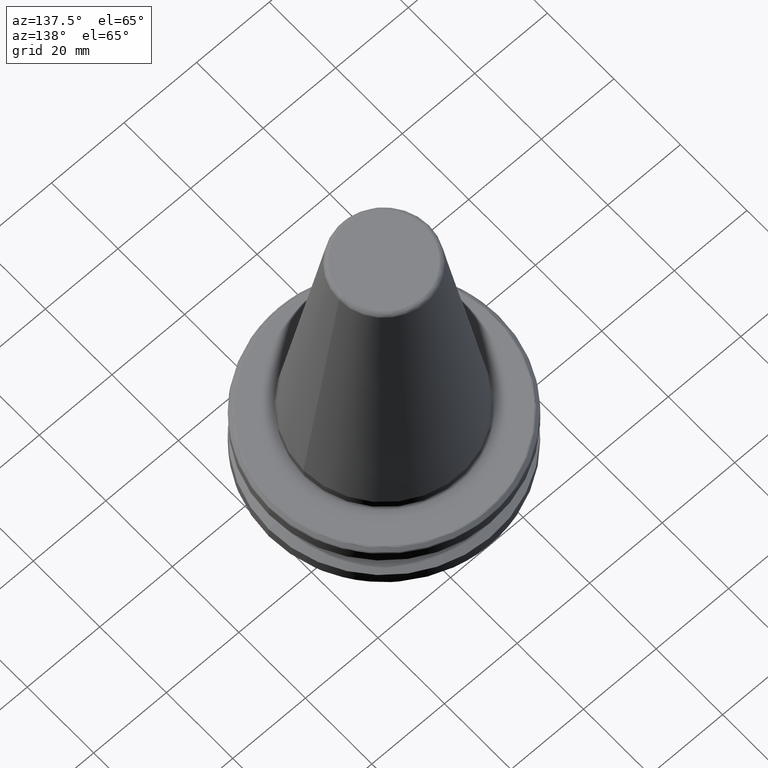
[diagram: clean part render]
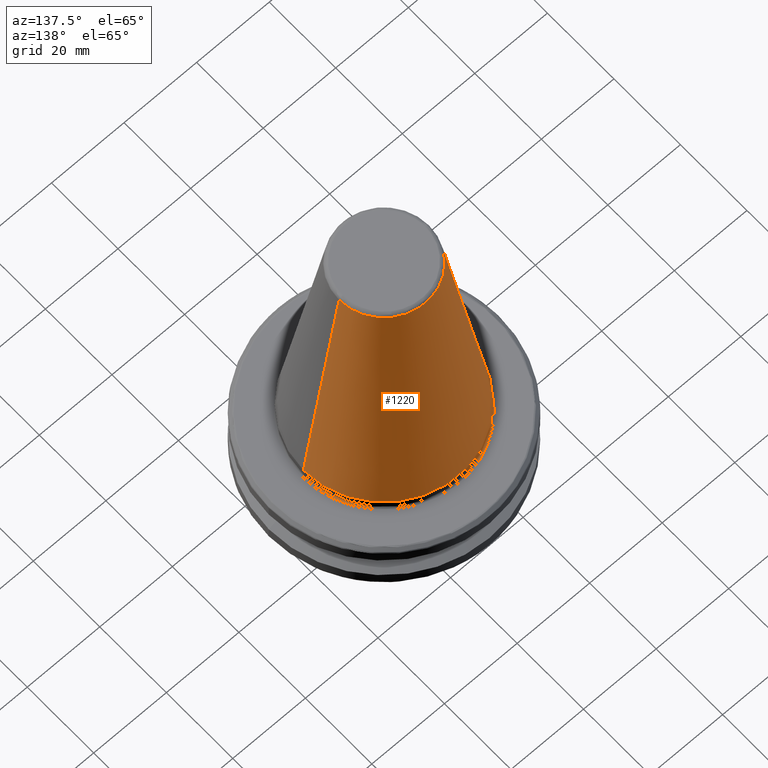
[diagram: same view with one face highlighted and labeled with its STEP entity id]
A machine part, auxiliary view. The second image highlights one B-rep face of the part: STEP entity #1220.
In plain terms, the highlighted conical surface has half-angle 8.297 deg.
Its self-contained STEP definition (entity closure, byte-faithful):
#68 = VECTOR ( 'NONE', #2976, 1000.000000000000000 ) ;
#319 = CIRCLE ( 'NONE', #928, 22.22500000000000100 ) ;
#382 = DIRECTION ( 'NONE',  ( -1.000000000000000000, 0.0000000000000000000, 0.0000000000000000000 ) ) ;
#462 = VERTEX_POINT ( 'NONE', #2239 ) ;
#554 = VECTOR ( 'NONE', #1482, 1000.000000000000000 ) ;
#680 = DIRECTION ( 'NONE',  ( 0.0000000000000000000, 0.0000000000000000000, -1.000000000000000000 ) ) ;
#714 = AXIS2_PLACEMENT_3D ( 'NONE', #2527, #680, #382 ) ;
#840 = FACE_OUTER_BOUND ( 'NONE', #2707, .T. ) ;
#928 = AXIS2_PLACEMENT_3D ( 'NONE', #2752, #1627, #1395 ) ;
#994 = LINE ( 'NONE', #1459, #554 ) ;
#1091 = EDGE_CURVE ( 'NONE', #2701, #2743, #319, .T. ) ;
#1220 = ADVANCED_FACE ( 'NONE', ( #840 ), #1688, .T. ) ;
#1233 = DIRECTION ( 'NONE',  ( -1.000000000000000000, 0.0000000000000000000, 0.0000000000000000000 ) ) ;
#1262 = DIRECTION ( 'NONE',  ( 0.0000000000000000000, 0.0000000000000000000, -1.000000000000000000 ) ) ;
#1285 = AXIS2_PLACEMENT_3D ( 'NONE', #2602, #1262, #1233 ) ;
#1329 = EDGE_CURVE ( 'NONE', #462, #2189, #2340, .T. ) ;
#1395 = DIRECTION ( 'NONE',  ( -1.000000000000000000, 0.0000000000000000000, 6.244223985518314900E-016 ) ) ;
#1459 = CARTESIAN_POINT ( 'NONE',  ( -22.22500000000000500, 0.0000000000000000000, -2.775557561562891400E-014 ) ) ;
#1482 = DIRECTION ( 'NONE',  ( -0.1443082272673070200, 0.0000000000000000000, -0.9895327864921743500 ) ) ;
#1627 = DIRECTION ( 'NONE',  ( -0.0000000000000000000, -0.0000000000000000000, 1.000000000000000000 ) ) ;
#1634 = EDGE_CURVE ( 'NONE', #462, #2743, #994, .T. ) ;
#1688 = CONICAL_SURFACE ( 'NONE', #714, 22.22500000000000500, 0.1448138465474190200 ) ;
#1804 = CARTESIAN_POINT ( 'NONE',  ( 22.22500000000000500, 2.721777511104993200E-015, -2.775557561562891400E-014 ) ) ;
#1888 = ORIENTED_EDGE ( 'NONE', *, *, #1091, .T. ) ;
#2189 = VERTEX_POINT ( 'NONE', #2392 ) ;
#2239 = CARTESIAN_POINT ( 'NONE',  ( -12.37469537611110800, 0.0000000000000000000, 67.54430822726730800 ) ) ;
#2280 = ORIENTED_EDGE ( 'NONE', *, *, #1634, .F. ) ;
#2340 = CIRCLE ( 'NONE', #1285, 12.37469537611110800 ) ;
#2360 = ORIENTED_EDGE ( 'NONE', *, *, #1329, .T. ) ;
#2392 = CARTESIAN_POINT ( 'NONE',  ( 12.37469537611110800, 2.118620309691397300E-015, 67.54430822726730800 ) ) ;
#2527 = CARTESIAN_POINT ( 'NONE',  ( 0.0000000000000000000, 0.0000000000000000000, -2.775557561562891400E-014 ) ) ;
#2548 = CARTESIAN_POINT ( 'NONE',  ( 22.22499999999999100, 0.0000000000000000000, -2.775557561562891400E-014 ) ) ;
#2602 = CARTESIAN_POINT ( 'NONE',  ( 0.0000000000000000000, 0.0000000000000000000, 67.54430822726730800 ) ) ;
#2603 = ORIENTED_EDGE ( 'NONE', *, *, #2675, .T. ) ;
#2675 = EDGE_CURVE ( 'NONE', #2189, #2701, #2836, .T. ) ;
#2701 = VERTEX_POINT ( 'NONE', #2548 ) ;
#2707 = EDGE_LOOP ( 'NONE', ( #2360, #2603, #1888, #2280 ) ) ;
#2743 = VERTEX_POINT ( 'NONE', #3053 ) ;
#2752 = CARTESIAN_POINT ( 'NONE',  ( 0.0000000000000000000, 0.0000000000000000000, -2.775557561562891400E-014 ) ) ;
#2836 = LINE ( 'NONE', #1804, #68 ) ;
#2976 = DIRECTION ( 'NONE',  ( 0.1443082272673070200, 1.767266086135363300E-017, -0.9895327864921743500 ) ) ;
#3053 = CARTESIAN_POINT ( 'NONE',  ( -22.22499999999999100, 2.721777511104991700E-015, -2.775557561562891400E-014 ) ) ;